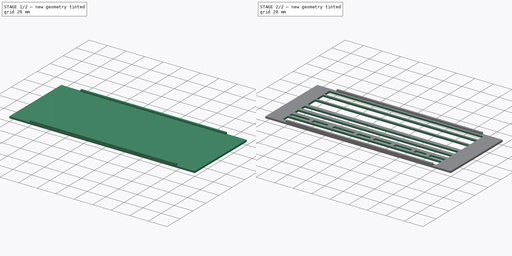
[diagram: build sequence overview — one tinted view per stage of 2, left to right]
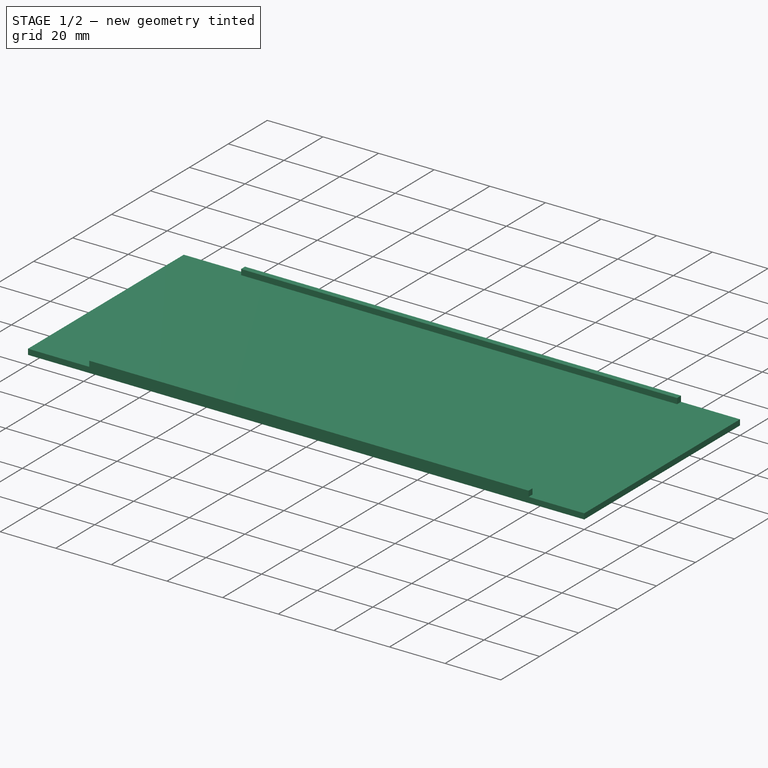
[diagram: stage 1 of 2 — iso view after this stage's code; geometry added in this stage tinted green]
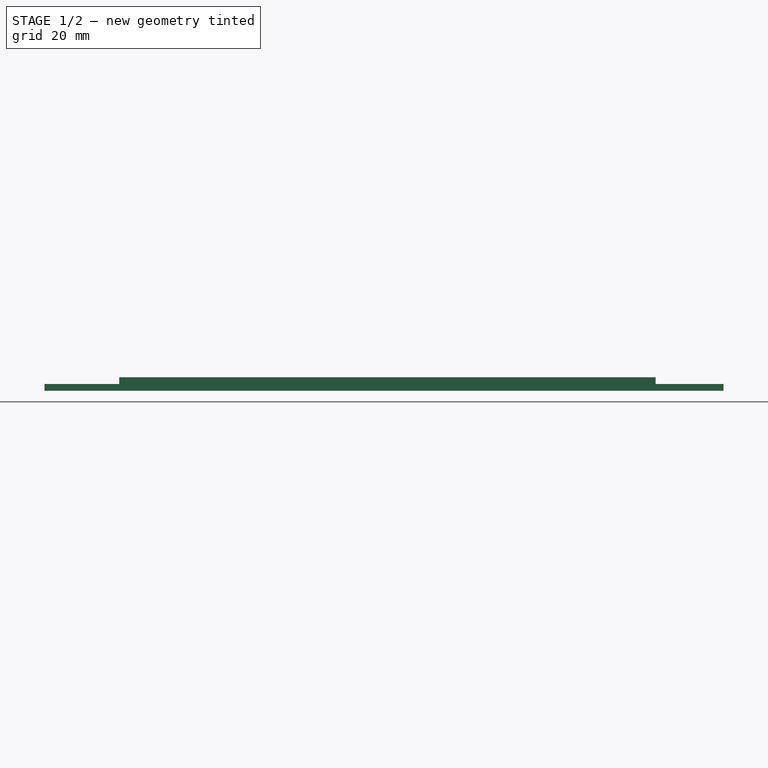
[diagram: stage 1 of 2 — front view after this stage's code; geometry added in this stage tinted green]
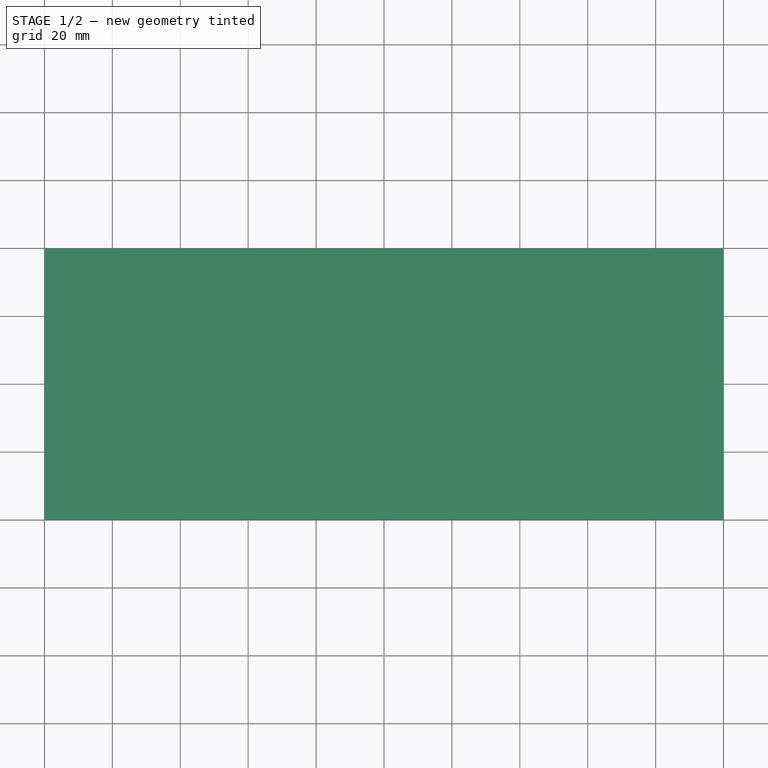
[diagram: stage 1 of 2 — top view after this stage's code; geometry added in this stage tinted green]
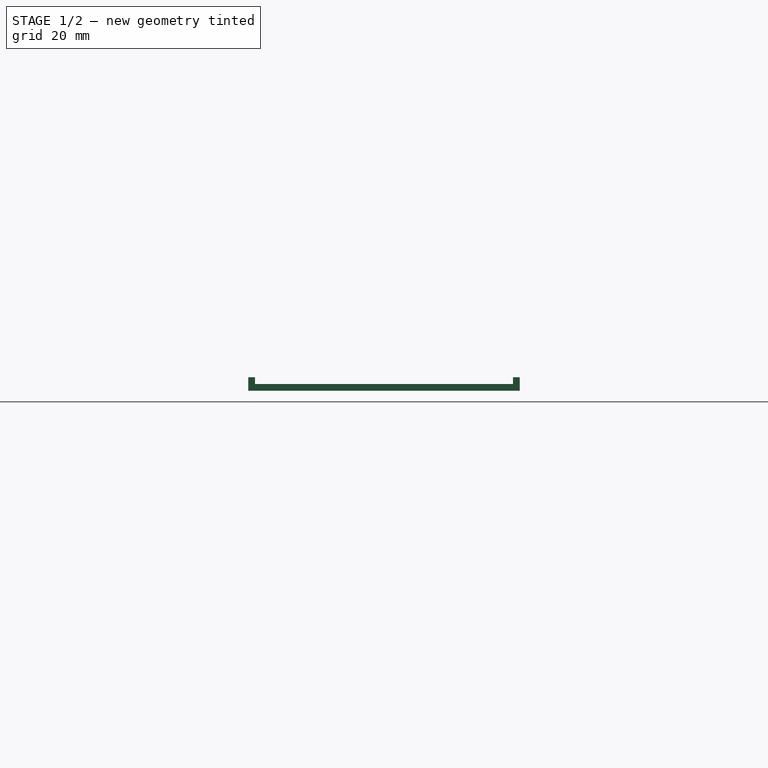
[diagram: stage 1 of 2 — right view after this stage's code; geometry added in this stage tinted green]
FCSTD DOCUMENT  (FreeCAD 0.19RUnknown)
Label: bar-car-ground-plate
License: All rights reserved
LicenseURL: http://en.wikipedia.org/wiki/All_rights_reserved
objects: Sketcher::SketchObject×3, PartDesign::Pad×2, PartDesign::Pocket×1, PartDesign::Body×1
note: 10 computed .brp shape members not serialized (recipe doc carries the construction recipe); baked Part::Feature solids carry a one-line shape summary decoded from their .brp

FEATURE [Sketcher::SketchObject] Sketch
  FullyConstrained = false
  MapMode = 5
  Support = -> [XY_Plane]
  sketch-geometry (4):
    g0: LineSegment StartX=0 StartY=0 StartZ=0 EndX=200 EndY=0 EndZ=0
    g1: LineSegment StartX=200 StartY=0 StartZ=0 EndX=200 EndY=80 EndZ=0
    g2: LineSegment StartX=200 StartY=80 StartZ=0 EndX=0 EndY=80 EndZ=0
    g3: LineSegment StartX=0 StartY=80 StartZ=0 EndX=0 EndY=0 EndZ=0
  constraints (9):
    c: Coincident(g0,g1)
    c: Coincident(g1,g2)
    c: Coincident(g2,g3)
    c: Coincident(g3,g0)
    c: Horizontal(g0)
    c: Horizontal(g2)
    c: Vertical(g1)
    c: Vertical(g3)
    c: Coincident(g0,g-1)
FEATURE [PartDesign::Pad] Pad
  Direction = (1,1,1)
  Length = 2
  Length2 = 100
  Profile = -> Sketch
  Type = 0
FEATURE [Sketcher::SketchObject] Sketch001
  FullyConstrained = false
  MapMode = 5
  Placement = pos=(0,0,2) rot=(0,0,1;0rad)
  Support = -> [Pad]
  sketch-geometry (8):
    g0: LineSegment StartX=22 StartY=2 StartZ=0 EndX=180 EndY=2 EndZ=0
    g1: LineSegment StartX=180 StartY=2 StartZ=0 EndX=180 EndY=0 EndZ=0
    g2: LineSegment StartX=180 StartY=0 StartZ=0 EndX=22 EndY=0 EndZ=0
    g3: LineSegment StartX=22 StartY=0 StartZ=0 EndX=22 EndY=2 EndZ=0
    g4: LineSegment StartX=22 StartY=80 StartZ=0 EndX=178.797 EndY=80 EndZ=0
    g5: LineSegment StartX=178.797 StartY=80 StartZ=0 EndX=178.797 EndY=78 EndZ=0
    g6: LineSegment StartX=178.797 StartY=78 StartZ=0 EndX=22 EndY=78 EndZ=0
    g7: LineSegment StartX=22 StartY=78 StartZ=0 EndX=22 EndY=80 EndZ=0
  constraints (16):
    c: Coincident(g0,g1)
    c: Coincident(g1,g2)
    c: Coincident(g2,g3)
    c: Coincident(g3,g0)
    c: Horizontal(g0)
    c: Horizontal(g2)
    c: Vertical(g1)
    c: Vertical(g3)
    c: Coincident(g4,g5)
    c: Coincident(g5,g6)
    c: Coincident(g6,g7)
    c: Coincident(g7,g4)
    c: Horizontal(g4)
    c: Horizontal(g6)
    c: Vertical(g5)
    c: Vertical(g7)
FEATURE [PartDesign::Pad] Pad001
  BaseFeature = -> Pad
  Direction = (1,1,1)
  Length = 2
  Length2 = 100
  Profile = -> Sketch001
  Type = 0
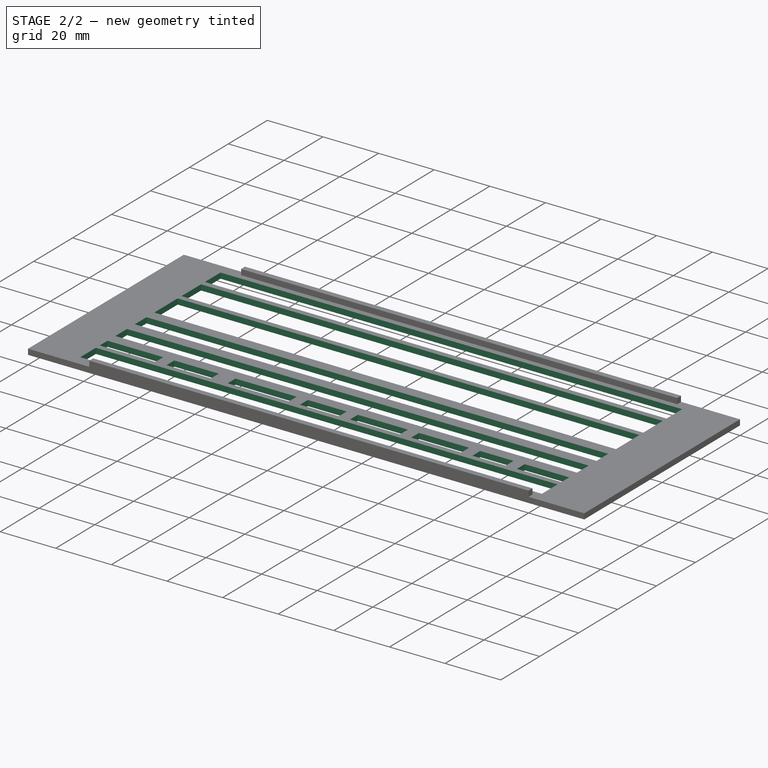
[diagram: stage 2 of 2 — iso view after this stage's code; geometry added in this stage tinted green]
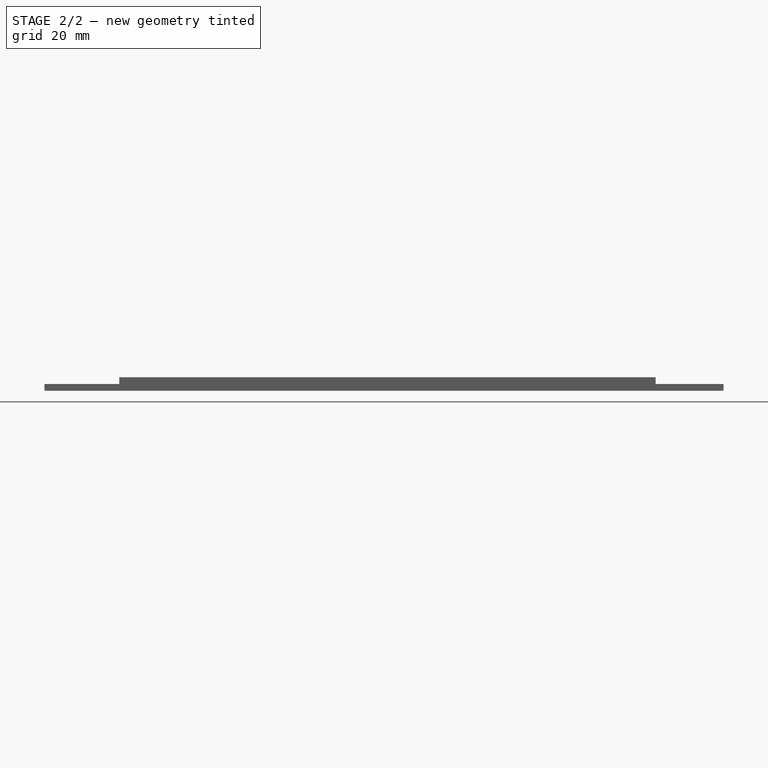
[diagram: stage 2 of 2 — front view after this stage's code; geometry added in this stage tinted green]
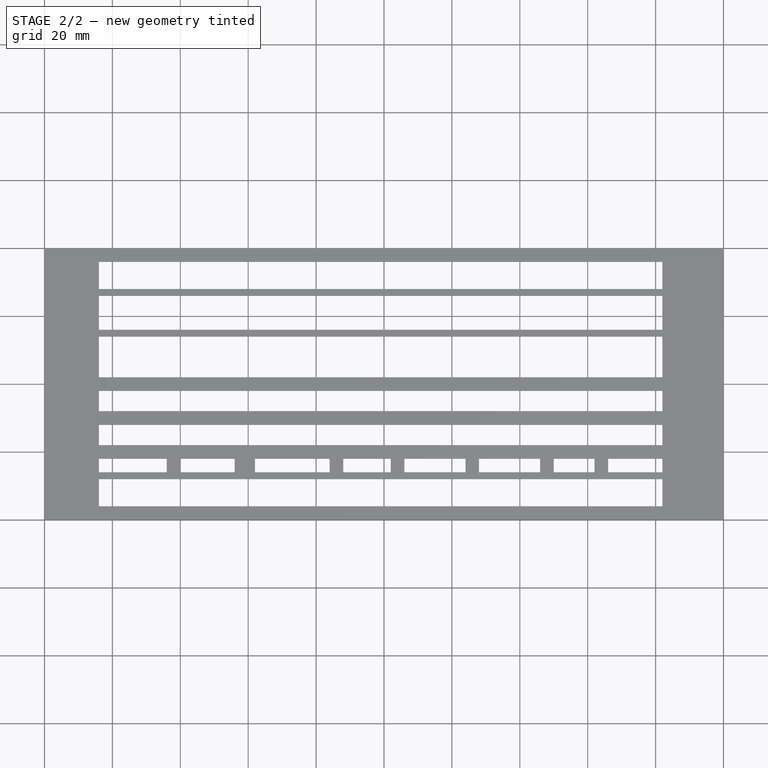
[diagram: stage 2 of 2 — top view after this stage's code; geometry added in this stage tinted green]
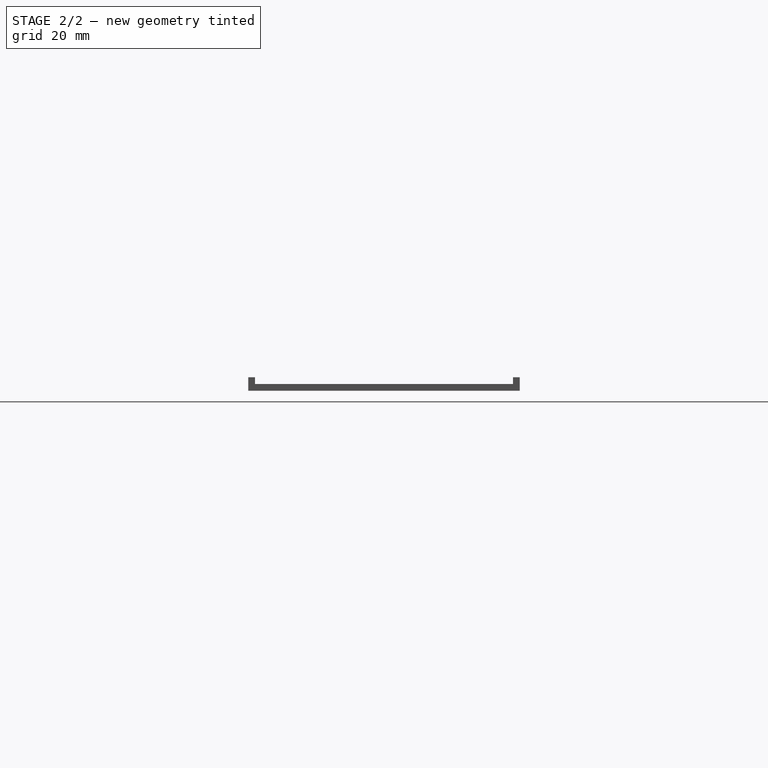
[diagram: stage 2 of 2 — right view after this stage's code; geometry added in this stage tinted green]
FEATURE [Sketcher::SketchObject] Sketch002
  FullyConstrained = false
  MapMode = 5
  Placement = pos=(0,0,2) rot=(0,0,1;0rad)
  Support = -> [Pad001]
  sketch-geometry (56):
    g0: LineSegment StartX=16 StartY=76 StartZ=0 EndX=182 EndY=76 EndZ=0
    g1: LineSegment StartX=182 StartY=76 StartZ=0 EndX=182 EndY=68 EndZ=0
    g2: LineSegment StartX=182 StartY=68 StartZ=0 EndX=16 EndY=68 EndZ=0
    g3: LineSegment StartX=16 StartY=68 StartZ=0 EndX=16 EndY=76 EndZ=0
    g4: LineSegment StartX=16 StartY=66 StartZ=0 EndX=182 EndY=66 EndZ=0
    g5: LineSegment StartX=182 StartY=66 StartZ=0 EndX=182 EndY=56 EndZ=0
    g6: LineSegment StartX=182 StartY=56 StartZ=0 EndX=16 EndY=56 EndZ=0
    g7: LineSegment StartX=16 StartY=56 StartZ=0 EndX=16 EndY=66 EndZ=0
    g8: LineSegment StartX=16 StartY=54 StartZ=0 EndX=182 EndY=54 EndZ=0
    g9: LineSegment StartX=182 StartY=54 StartZ=0 EndX=182 EndY=42 EndZ=0
    g10: LineSegment StartX=182 StartY=42 StartZ=0 EndX=16 EndY=42 EndZ=0
    g11: LineSegment StartX=16 StartY=42 StartZ=0 EndX=16 EndY=54 EndZ=0
    g12: LineSegment StartX=16 StartY=4 StartZ=0 EndX=182 EndY=4 EndZ=0
    g13: LineSegment StartX=182 StartY=4 StartZ=0 EndX=182 EndY=12 EndZ=0
    g14: LineSegment StartX=182 StartY=12 StartZ=0 EndX=16 EndY=12 EndZ=0
    g15: LineSegment StartX=16 StartY=12 StartZ=0 EndX=16 EndY=4 EndZ=0
    g16: LineSegment StartX=16 StartY=14 StartZ=0 EndX=36 EndY=14 EndZ=0
    g17: LineSegment StartX=36 StartY=14 StartZ=0 EndX=36 EndY=18 EndZ=0
    g18: LineSegment StartX=36 StartY=18 StartZ=0 EndX=16 EndY=18 EndZ=0
    g19: LineSegment StartX=16 StartY=18 StartZ=0 EndX=16 EndY=14 EndZ=0
    g20: LineSegment StartX=40 StartY=18 StartZ=0 EndX=56 EndY=18 EndZ=0
    g21: LineSegment StartX=56 StartY=18 StartZ=0 EndX=56 EndY=14 EndZ=0
    g22: LineSegment StartX=56 StartY=14 StartZ=0 EndX=40 EndY=14 EndZ=0
    g23: LineSegment StartX=40 StartY=14 StartZ=0 EndX=40 EndY=18 EndZ=0
    g24: LineSegment StartX=62 StartY=18 StartZ=0 EndX=84 EndY=18 EndZ=0
    g25: LineSegment StartX=84 StartY=18 StartZ=0 EndX=84 EndY=14 EndZ=0
    g26: LineSegment StartX=84 StartY=14 StartZ=0 EndX=62 EndY=14 EndZ=0
    g27: LineSegment StartX=62 StartY=14 StartZ=0 EndX=62 EndY=18 EndZ=0
    g28: LineSegment StartX=88 StartY=18 StartZ=0 EndX=102 EndY=18 EndZ=0
    g29: LineSegment StartX=102 StartY=18 StartZ=0 EndX=102 EndY=14 EndZ=0
    g30: LineSegment StartX=102 StartY=14 StartZ=0 EndX=88 EndY=14 EndZ=0
    g31: LineSegment StartX=88 StartY=14 StartZ=0 EndX=88 EndY=18 EndZ=0
    g32: LineSegment StartX=106 StartY=18 StartZ=0 EndX=124 EndY=18 EndZ=0
    g33: LineSegment StartX=124 StartY=18 StartZ=0 EndX=124 EndY=14 EndZ=0
    g34: LineSegment StartX=124 StartY=14 StartZ=0 EndX=106 EndY=14 EndZ=0
    g35: LineSegment StartX=106 StartY=14 StartZ=0 EndX=106 EndY=18 EndZ=0
    g36: LineSegment StartX=128 StartY=18 StartZ=0 EndX=146 EndY=18 EndZ=0
    g37: LineSegment StartX=146 StartY=18 StartZ=0 EndX=146 EndY=14 EndZ=0
    g38: LineSegment StartX=146 StartY=14 StartZ=0 EndX=128 EndY=14 EndZ=0
    g39: LineSegment StartX=128 StartY=14 StartZ=0 EndX=128 EndY=18 EndZ=0
    g40: LineSegment StartX=150 StartY=18 StartZ=0 EndX=162 EndY=18 EndZ=0
    g41: LineSegment StartX=162 StartY=18 StartZ=0 EndX=162 EndY=14 EndZ=0
    g42: LineSegment StartX=162 StartY=14 StartZ=0 EndX=150 EndY=14 EndZ=0
    g43: LineSegment StartX=150 StartY=14 StartZ=0 EndX=150 EndY=18 EndZ=0
    g44: LineSegment StartX=166 StartY=18 StartZ=0 EndX=182 EndY=18 EndZ=0
    g45: LineSegment StartX=182 StartY=18 StartZ=0 EndX=182 EndY=14 EndZ=0
    g46: LineSegment StartX=182 StartY=14 StartZ=0 EndX=166 EndY=14 EndZ=0
    g47: LineSegment StartX=166 StartY=14 StartZ=0 EndX=166 EndY=18 EndZ=0
    g48: LineSegment StartX=16 StartY=22 StartZ=0 EndX=182 EndY=22 EndZ=0
    g49: LineSegment StartX=182 StartY=22 StartZ=0 EndX=182 EndY=28 EndZ=0
    g50: LineSegment StartX=182 StartY=28 StartZ=0 EndX=16 EndY=28 EndZ=0
    g51: LineSegment StartX=16 StartY=28 StartZ=0 EndX=16 EndY=22 EndZ=0
    g52: LineSegment StartX=16 StartY=38 StartZ=0 EndX=182 EndY=38 EndZ=0
    g53: LineSegment StartX=182 StartY=38 StartZ=0 EndX=182 EndY=32 EndZ=0
    g54: LineSegment StartX=182 StartY=32 StartZ=0 EndX=16 EndY=32 EndZ=0
    g55: LineSegment StartX=16 StartY=32 StartZ=0 EndX=16 EndY=38 EndZ=0
  constraints (112):
    c: Coincident(g0,g1)
    c: Coincident(g1,g2)
    c: Coincident(g2,g3)
    c: Coincident(g3,g0)
    c: Horizontal(g0)
    c: Horizontal(g2)
    c: Vertical(g1)
    c: Vertical(g3)
    c: Coincident(g4,g5)
    c: Coincident(g5,g6)
    c: Coincident(g6,g7)
    c: Coincident(g7,g4)
    c: Horizontal(g4)
    c: Horizontal(g6)
    c: Vertical(g5)
    c: Vertical(g7)
    c: Coincident(g8,g9)
    c: Coincident(g9,g10)
    c: Coincident(g10,g11)
    c: Coincident(g11,g8)
    c: Horizontal(g8)
    c: Horizontal(g10)
    c: Vertical(g9)
    c: Vertical(g11)
    c: Coincident(g12,g13)
    c: Coincident(g13,g14)
    c: Coincident(g14,g15)
    c: Coincident(g15,g12)
    c: Horizontal(g12)
    c: Horizontal(g14)
    c: Vertical(g13)
    c: Vertical(g15)
    c: Coincident(g16,g17)
    c: Coincident(g17,g18)
    c: Coincident(g18,g19)
    c: Coincident(g19,g16)
    c: Horizontal(g16)
    c: Horizontal(g18)
    c: Vertical(g17)
    c: Vertical(g19)
    c: Coincident(g20,g21)
    c: Coincident(g21,g22)
    c: Coincident(g22,g23)
    c: Coincident(g23,g20)
    c: Horizontal(g20)
    c: Horizontal(g22)
    c: Vertical(g21)
    c: Vertical(g23)
    c: Coincident(g24,g25)
    c: Coincident(g25,g26)
    c: Coincident(g26,g27)
    c: Coincident(g27,g24)
    c: Horizontal(g24)
    c: Horizontal(g26)
    c: Vertical(g25)
    c: Vertical(g27)
    c: Coincident(g28,g29)
    c: Coincident(g29,g30)
    c: Coincident(g30,g31)
    c: Coincident(g31,g28)
    c: Horizontal(g28)
    c: Horizontal(g30)
    c: Vertical(g29)
    c: Vertical(g31)
    c: Coincident(g32,g33)
    c: Coincident(g33,g34)
    c: Coincident(g34,g35)
    c: Coincident(g35,g32)
    c: Horizontal(g32)
    c: Horizontal(g34)
    c: Vertical(g33)
    c: Vertical(g35)
    c: Coincident(g36,g37)
    c: Coincident(g37,g38)
    c: Coincident(g38,g39)
    c: Coincident(g39,g36)
    c: Horizontal(g36)
    c: Horizontal(g38)
    c: Vertical(g37)
    c: Vertical(g39)
    c: Coincident(g40,g41)
    c: Coincident(g41,g42)
    c: Coincident(g42,g43)
    c: Coincident(g43,g40)
    c: Horizontal(g40)
    c: Horizontal(g42)
    c: Vertical(g41)
    c: Vertical(g43)
    c: Coincident(g44,g45)
    c: Coincident(g45,g46)
    c: Coincident(g46,g47)
    c: Coincident(g47,g44)
    c: Horizontal(g44)
    c: Horizontal(g46)
    c: Vertical(g45)
    c: Vertical(g47)
    c: Coincident(g48,g49)
    c: Coincident(g49,g50)
    c: Coincident(g50,g51)
    c: Coincident(g51,g48)
    c: Horizontal(g48)
    c: Horizontal(g50)
    c: Vertical(g49)
    c: Vertical(g51)
    c: Coincident(g52,g53)
    c: Coincident(g53,g54)
    c: Coincident(g54,g55)
    c: Coincident(g55,g52)
    c: Horizontal(g52)
    c: Horizontal(g54)
    c: Vertical(g53)
    c: Vertical(g55)
FEATURE [PartDesign::Pocket] Pocket
  BaseFeature = -> Pad001
  Length = 5
  Length2 = 100
  Profile = -> Sketch002
  Type = 0
FEATURE [PartDesign::Body] Body
  Group = -> [Sketch,Pad,Sketch001,Pad001,Sketch002,Pocket]
  Origin = -> Origin
  Tip = -> Pocket
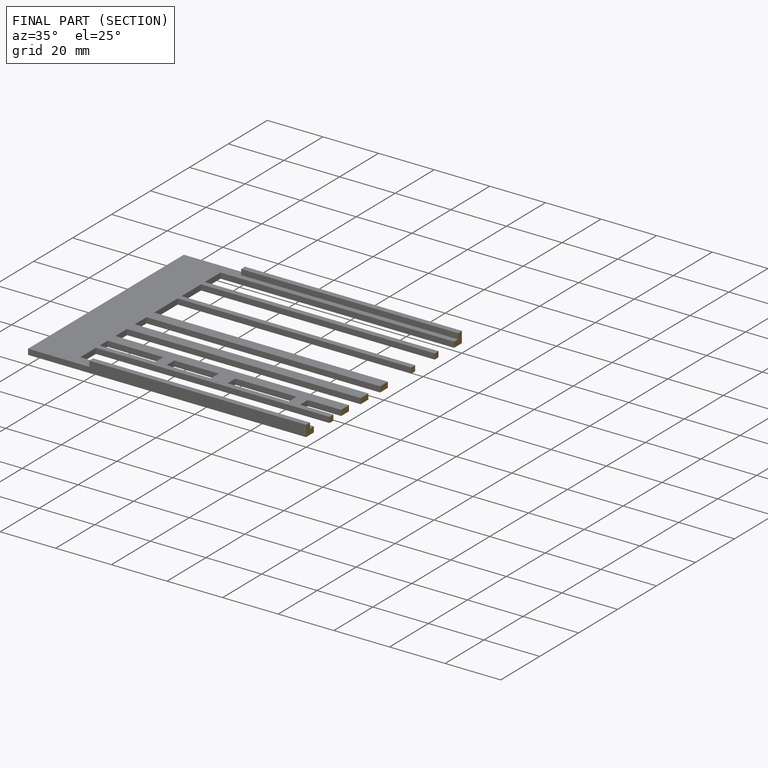
[diagram: finished part — half-section view (interior)]
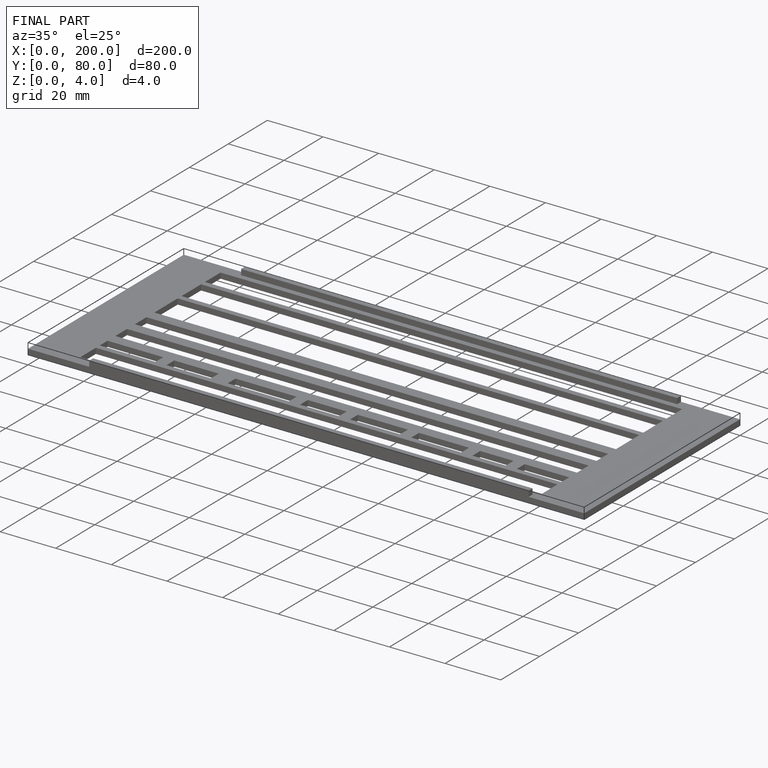
[diagram: finished part — iso view with bounding-box wireframe]
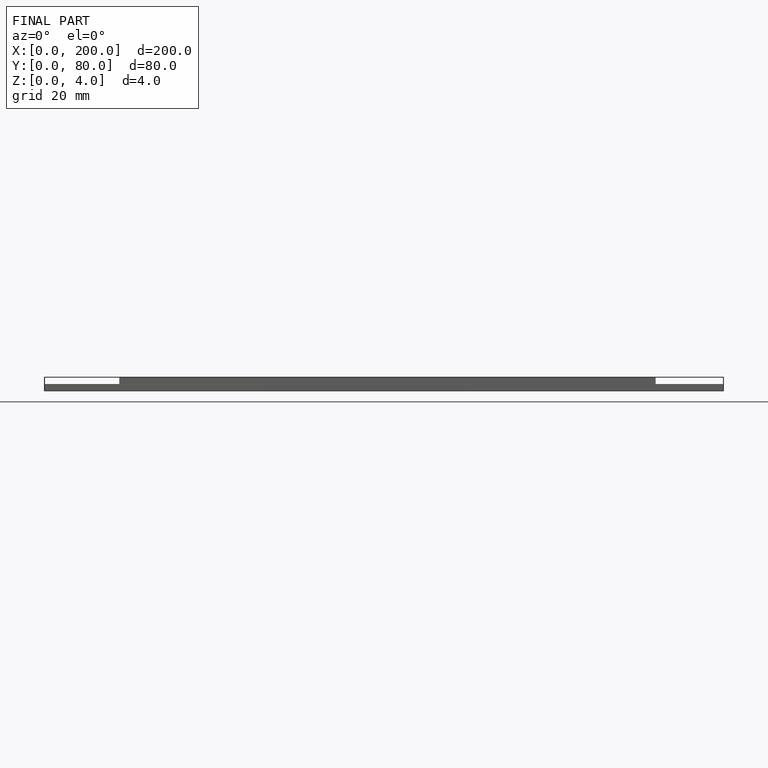
[diagram: finished part — front view with bounding-box wireframe]
